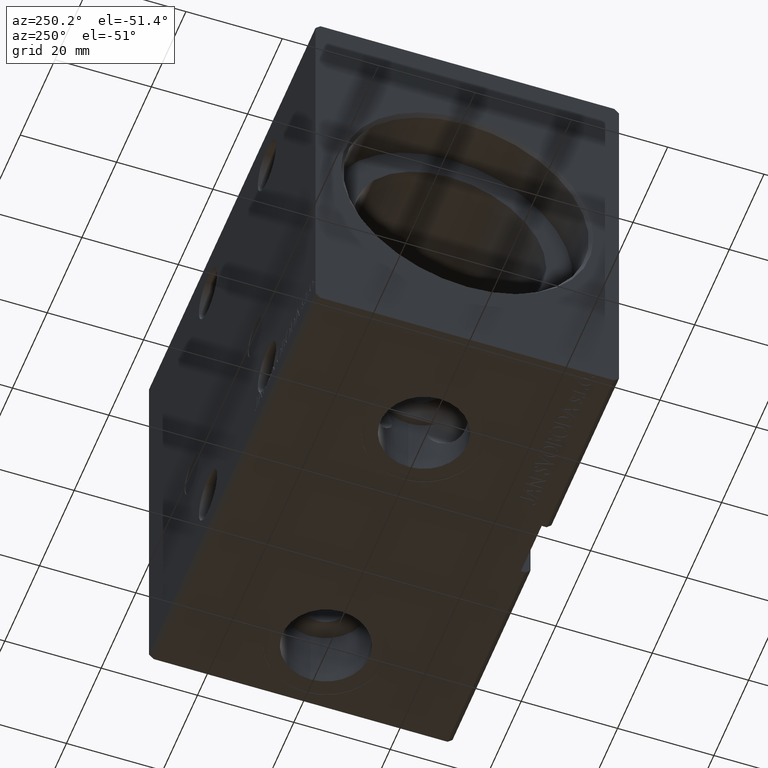
[diagram: clean part render]
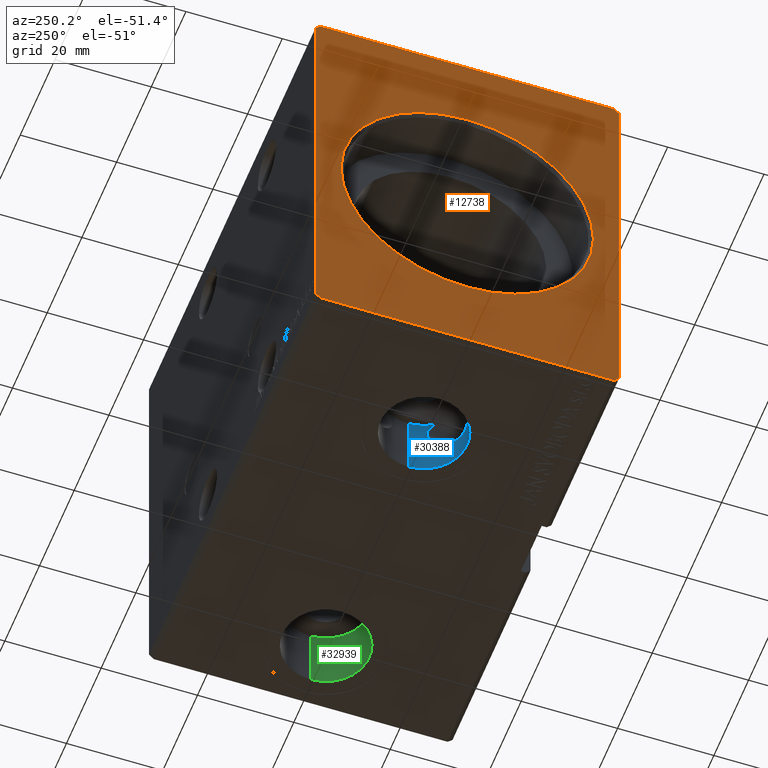
[diagram: same view with three faces highlighted in distinct colors, each labeled with its STEP entity id]
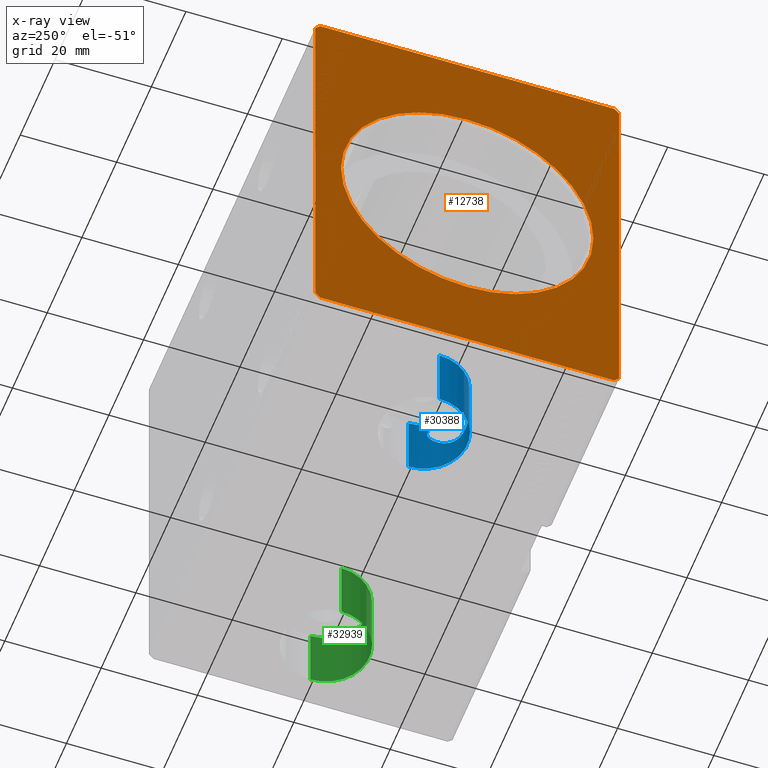
[diagram: x-ray of the same camera — body ghosted, the three highlighted faces saturated]
A machine part, auxiliary view with three faces highlighted in distinct colors.
The next image is the same camera in x-ray (body ghosted, the three faces saturated) — at least one of them is partly hidden behind the body in this view.
Their STEP definitions:

[orange] entity #12738 — the highlighted planar face has unit normal (1, 0, 0).
#185 = ORIENTED_EDGE ( 'NONE', *, *, #25959, .T. ) ;
#1245 = ORIENTED_EDGE ( 'NONE', *, *, #7974, .F. ) ;
#1975 = VECTOR ( 'NONE', #34392, 1000.000000000000000 ) ;
#3384 = EDGE_LOOP ( 'NONE', ( #32281, #11614, #8584, #1245, #32557, #32505, #19109, #31046 ) ) ;
#3762 = DIRECTION ( 'NONE',  ( 0.000000000000000000, 0.7071067811865462405, 0.7071067811865489050 ) ) ;
#3880 = DIRECTION ( 'NONE',  ( 0.000000000000000000, -0.7071067811865474617, 0.7071067811865474617 ) ) ;
#4078 = LINE ( 'NONE', #6796, #40055 ) ;
#5003 = CIRCLE ( 'NONE', #33392, 26.19999999999998863 ) ;
#5585 = CARTESIAN_POINT ( 'NONE',  ( 0.000000000000000000, -31.50000000000000000, -41.50000000000000711 ) ) ;
#5790 = CARTESIAN_POINT ( 'NONE',  ( 0.000000000000000000, -31.50000000000000000, 41.49999999999999289 ) ) ;
#5886 = VECTOR ( 'NONE', #31996, 1000.000000000000000 ) ;
#6162 = CARTESIAN_POINT ( 'NONE',  ( 0.000000000000000000, -31.50000000000000000, 41.49999999999999289 ) ) ;
#6796 = CARTESIAN_POINT ( 'NONE',  ( 0.000000000000000000, -30.50000000000000355, 42.49999999999999289 ) ) ;
#6845 = DIRECTION ( 'NONE',  ( 0.000000000000000000, 1.000000000000000000, 0.000000000000000000 ) ) ;
#6986 = LINE ( 'NONE', #15889, #27634 ) ;
#7293 = LINE ( 'NONE', #19482, #22002 ) ;
#7974 = EDGE_CURVE ( 'NONE', #24980, #20966, #37696, .T. ) ;
#8133 = VERTEX_POINT ( 'NONE', #34987 ) ;
#8448 = AXIS2_PLACEMENT_3D ( 'NONE', #24257, #30653, #12043 ) ;
#8584 = ORIENTED_EDGE ( 'NONE', *, *, #27670, .F. ) ;
#9144 = LINE ( 'NONE', #21764, #1975 ) ;
#9348 = PLANE ( 'NONE',  #8448 ) ;
#9891 = VERTEX_POINT ( 'NONE', #5585 ) ;
#9935 = DIRECTION ( 'NONE',  ( 1.000000000000000000, 0.000000000000000000, 0.000000000000000000 ) ) ;
#10293 = DIRECTION ( 'NONE',  ( 0.000000000000000000, -0.7071067811865462405, -0.7071067811865489050 ) ) ;
#10343 = DIRECTION ( 'NONE',  ( 0.000000000000000000, 0.000000000000000000, -1.000000000000000000 ) ) ;
#11614 = ORIENTED_EDGE ( 'NONE', *, *, #15639, .F. ) ;
#12043 = DIRECTION ( 'NONE',  ( 0.000000000000000000, 0.000000000000000000, -1.000000000000000000 ) ) ;
#12385 = DIRECTION ( 'NONE',  ( 0.000000000000000000, 0.7071067811865451302, -0.7071067811865500152 ) ) ;
#12738 = ADVANCED_FACE ( 'NONE', ( #21771, #37508 ), #9348, .F. ) ;
#13418 = CARTESIAN_POINT ( 'NONE',  ( 0.000000000000000000, 0.000000000000000000, 0.000000000000000000 ) ) ;
#13631 = ORIENTED_EDGE ( 'NONE', *, *, #37085, .T. ) ;
#14580 = CARTESIAN_POINT ( 'NONE',  ( 0.000000000000000000, 30.50000000000001421, 42.49999999999999289 ) ) ;
#15639 = EDGE_CURVE ( 'NONE', #20866, #34434, #6986, .T. ) ;
#15705 = LINE ( 'NONE', #25818, #32984 ) ;
#15889 = CARTESIAN_POINT ( 'NONE',  ( 0.000000000000000000, 31.50000000000001421, -41.50000000000000711 ) ) ;
#17195 = CARTESIAN_POINT ( 'NONE',  ( 0.000000000000000000, -30.50000000000000355, 42.49999999999999289 ) ) ;
#18100 = CARTESIAN_POINT ( 'NONE',  ( 0.000000000000000000, 30.50000000000001776, -42.50000000000000711 ) ) ;
#19109 = ORIENTED_EDGE ( 'NONE', *, *, #38104, .F. ) ;
#19482 = CARTESIAN_POINT ( 'NONE',  ( 0.000000000000000000, 30.50000000000001776, -42.50000000000000711 ) ) ;
#19557 = VECTOR ( 'NONE', #12385, 1000.000000000000114 ) ;
#19654 = CARTESIAN_POINT ( 'NONE',  ( 0.000000000000000000, 0.000000000000000000, 0.000000000000000000 ) ) ;
#19970 = EDGE_CURVE ( 'NONE', #23440, #25775, #9144, .T. ) ;
#20584 = AXIS2_PLACEMENT_3D ( 'NONE', #13418, #38274, #35770 ) ;
#20866 = VERTEX_POINT ( 'NONE', #29075 ) ;
#20966 = VERTEX_POINT ( 'NONE', #18100 ) ;
#21552 = EDGE_CURVE ( 'NONE', #23089, #9891, #37010, .T. ) ;
#21764 = CARTESIAN_POINT ( 'NONE',  ( 0.000000000000000000, 30.50000000000001421, 42.49999999999999289 ) ) ;
#21771 = FACE_BOUND ( 'NONE', #28454, .T. ) ;
#22002 = VECTOR ( 'NONE', #3762, 999.9999999999998863 ) ;
#22718 = CARTESIAN_POINT ( 'NONE',  ( 0.000000000000000000, 31.50000000000001421, 41.49999999999999289 ) ) ;
#23089 = VERTEX_POINT ( 'NONE', #5790 ) ;
#23157 = EDGE_CURVE ( 'NONE', #34434, #23440, #15705, .T. ) ;
#23440 = VERTEX_POINT ( 'NONE', #14580 ) ;
#24257 = CARTESIAN_POINT ( 'NONE',  ( 0.000000000000000000, 0.000000000000000000, 0.000000000000000000 ) ) ;
#24700 = VERTEX_POINT ( 'NONE', #29427 ) ;
#24980 = VERTEX_POINT ( 'NONE', #30870 ) ;
#25775 = VERTEX_POINT ( 'NONE', #17195 ) ;
#25818 = CARTESIAN_POINT ( 'NONE',  ( 0.000000000000000000, 31.50000000000001421, 41.49999999999999289 ) ) ;
#25959 = EDGE_CURVE ( 'NONE', #24700, #8133, #38448, .T. ) ;
#27634 = VECTOR ( 'NONE', #37262, 1000.000000000000000 ) ;
#27670 = EDGE_CURVE ( 'NONE', #20966, #20866, #7293, .T. ) ;
#28092 = CARTESIAN_POINT ( 'NONE',  ( 0.000000000000000000, -31.50000000000000000, -41.50000000000000711 ) ) ;
#28454 = EDGE_LOOP ( 'NONE', ( #13631, #185 ) ) ;
#29075 = CARTESIAN_POINT ( 'NONE',  ( 0.000000000000000000, 31.50000000000001421, -41.50000000000000711 ) ) ;
#29427 = CARTESIAN_POINT ( 'NONE',  ( 0.000000000000000000, 3.208574613766063722E-15, -26.19999999999998863 ) ) ;
#30653 = DIRECTION ( 'NONE',  ( 1.000000000000000000, 0.000000000000000000, 0.000000000000000000 ) ) ;
#30770 = VECTOR ( 'NONE', #6845, 1000.000000000000000 ) ;
#30870 = CARTESIAN_POINT ( 'NONE',  ( 0.000000000000000000, -30.50000000000000711, -42.50000000000000711 ) ) ;
#31046 = ORIENTED_EDGE ( 'NONE', *, *, #19970, .F. ) ;
#31872 = CARTESIAN_POINT ( 'NONE',  ( 0.000000000000000000, -30.50000000000000711, -42.50000000000000711 ) ) ;
#31996 = DIRECTION ( 'NONE',  ( 0.000000000000000000, 0.000000000000000000, -1.000000000000000000 ) ) ;
#32281 = ORIENTED_EDGE ( 'NONE', *, *, #23157, .F. ) ;
#32505 = ORIENTED_EDGE ( 'NONE', *, *, #21552, .F. ) ;
#32557 = ORIENTED_EDGE ( 'NONE', *, *, #38061, .F. ) ;
#32984 = VECTOR ( 'NONE', #3880, 1000.000000000000114 ) ;
#33392 = AXIS2_PLACEMENT_3D ( 'NONE', #19654, #9935, #10343 ) ;
#34392 = DIRECTION ( 'NONE',  ( 0.000000000000000000, -1.000000000000000000, 0.000000000000000000 ) ) ;
#34434 = VERTEX_POINT ( 'NONE', #22718 ) ;
#34987 = CARTESIAN_POINT ( 'NONE',  ( 0.000000000000000000, 0.000000000000000000, 26.19999999999998863 ) ) ;
#35770 = DIRECTION ( 'NONE',  ( 0.000000000000000000, 0.000000000000000000, -1.000000000000000000 ) ) ;
#37010 = LINE ( 'NONE', #6162, #5886 ) ;
#37035 = LINE ( 'NONE', #28092, #19557 ) ;
#37085 = EDGE_CURVE ( 'NONE', #8133, #24700, #5003, .T. ) ;
#37262 = DIRECTION ( 'NONE',  ( 0.000000000000000000, 0.000000000000000000, 1.000000000000000000 ) ) ;
#37508 = FACE_OUTER_BOUND ( 'NONE', #3384, .T. ) ;
#37696 = LINE ( 'NONE', #31872, #30770 ) ;
#38061 = EDGE_CURVE ( 'NONE', #9891, #24980, #37035, .T. ) ;
#38104 = EDGE_CURVE ( 'NONE', #25775, #23089, #4078, .T. ) ;
#38274 = DIRECTION ( 'NONE',  ( 1.000000000000000000, 0.000000000000000000, 0.000000000000000000 ) ) ;
#38448 = CIRCLE ( 'NONE', #20584, 26.19999999999998863 ) ;
#40055 = VECTOR ( 'NONE', #10293, 999.9999999999998863 ) ;

[blue] entity #30388 — the highlighted cylindrical surface (partial cylindrical patch) has radius 9 mm, axis along (-0, -0, -1).
#455 = EDGE_CURVE ( 'NONE', #38071, #18462, #12771, .T. ) ;
#1009 = CARTESIAN_POINT ( 'NONE',  ( 25.59139474755289712, -8.982805896134886225, -36.17063999887223247 ) ) ;
#1218 = CARTESIAN_POINT ( 'NONE',  ( 22.74804822313883790, -8.713708641842128344, -31.68149027390553840 ) ) ;
#1961 = CARTESIAN_POINT ( 'NONE',  ( 33.22560366286070632, -3.653595990558375473, -32.06699883898451731 ) ) ;
#2163 = CARTESIAN_POINT ( 'NONE',  ( 30.30560158851340091, -7.274200838205569397, -36.22207015579552802 ) ) ;
#2616 = LINE ( 'NONE', #9033, #6999 ) ;
#3036 = AXIS2_PLACEMENT_3D ( 'NONE', #38295, #22347, #37691 ) ;
#3497 = CARTESIAN_POINT ( 'NONE',  ( 23.95726430294239861, -8.945460866260507515, -34.88153592072618636 ) ) ;
#4656 = CARTESIAN_POINT ( 'NONE',  ( 33.08962436763945902, -3.947224592150487599, -32.80873910227624890 ) ) ;
#4854 = CARTESIAN_POINT ( 'NONE',  ( 32.69212753593811982, -4.675829051438523898, -33.86519840367557777 ) ) ;
#4929 = CARTESIAN_POINT ( 'NONE',  ( 22.86212622378299031, -8.742604917044038970, -32.60391993553432854 ) ) ;
#5028 = DIRECTION ( 'NONE',  ( -0.000000000000000000, -0.000000000000000000, -1.000000000000000000 ) ) ;
#5276 = CARTESIAN_POINT ( 'NONE',  ( 28.98517754201990115, -8.074007388929286932, -36.66256190678087279 ) ) ;
#5541 = VERTEX_POINT ( 'NONE', #15835 ) ;
#5832 = ORIENTED_EDGE ( 'NONE', *, *, #455, .F. ) ;
#6549 = FACE_OUTER_BOUND ( 'NONE', #37113, .T. ) ;
#6999 = VECTOR ( 'NONE', #37182, 1000.000000000000000 ) ;
#7077 = EDGE_CURVE ( 'NONE', #18462, #5541, #40044, .T. ) ;
#7090 = B_SPLINE_CURVE_WITH_KNOTS ( 'NONE', 3,
 ( #40053, #36112, #36521, #23681, #17692, #7770, #20779, #30300, #36319, #20377, #1961, #33004, #4656, #7970, #14585, #4854, #27194, #11680, #39841, #11466, #24086, #18090, #2163, #36731, #20991, #33622, #5276, #30500, #14784, #24302 ),
 .UNSPECIFIED., .F., .F.,
 ( 4, 2, 2, 2, 2, 2, 2, 2, 2, 2, 2, 2, 2, 2, 4 ),
 ( 0.000000000000000000, 0.0008071024603539738796, 0.001614204920707947759, 0.002421307381061921313, 0.003228409841415895518, 0.004035512301769869289, 0.004842614762123842627, 0.005649717222477816832, 0.006456819682831791037, 0.008071024603539740314, 0.009685229524247690458, 0.01049233198460166119, 0.01129943444495563019, 0.01210653690530960266, 0.01291363936566357340 ),
 .UNSPECIFIED. ) ;
#7433 = CARTESIAN_POINT ( 'NONE',  ( 22.76106731078869672, -8.717111773706365696, -31.91217486323479235 ) ) ;
#7770 = CARTESIAN_POINT ( 'NONE',  ( 33.10246986897183774, -3.920705777433834527, -30.24183443631941870 ) ) ;
#7970 = CARTESIAN_POINT ( 'NONE',  ( 32.95326830917984040, -4.215225687027825963, -33.25562162745016792 ) ) ;
#9033 = CARTESIAN_POINT ( 'NONE',  ( 34.00000000000000000, -1.563571752218930007E-15, -28.80000000000000782 ) ) ;
#9240 = CYLINDRICAL_SURFACE ( 'NONE', #16814, 9.000000000000001776 ) ;
#9304 = ORIENTED_EDGE ( 'NONE', *, *, #33716, .F. ) ;
#9525 = AXIS2_PLACEMENT_3D ( 'NONE', #35151, #24245, #21909 ) ;
#10124 = CARTESIAN_POINT ( 'NONE',  ( 27.11034434197095777, -8.752165220027299242, -36.67901082102268617 ) ) ;
#10288 = CARTESIAN_POINT ( 'NONE',  ( 23.49750069405891040, -8.873696852814312308, -28.80000000000000782 ) ) ;
#11466 = CARTESIAN_POINT ( 'NONE',  ( 31.40682111085803996, -6.336490055253520381, -35.51646266891867754 ) ) ;
#11680 = CARTESIAN_POINT ( 'NONE',  ( 32.26259123308183518, -5.330200586698289555, -34.59367876446104617 ) ) ;
#12339 = DIRECTION ( 'NONE',  ( -1.000000000000000000, 0.000000000000000000, 0.000000000000000000 ) ) ;
#12771 = B_SPLINE_CURVE_WITH_KNOTS ( 'NONE', 3,
 ( #29131, #38480, #22948, #10124, #32464, #22732, #35578, #16732, #1009, #26247, #38892, #34965, #19234, #3497, #25640, #28726, #14655, #4929, #20037, #7433, #1218, #26452, #17353, #32871, #29553, #13840, #14036, #36594 ),
 .UNSPECIFIED., .F., .F.,
 ( 4, 2, 2, 2, 2, 2, 2, 2, 2, 2, 2, 2, 2, 4 ),
 ( 0.01291363936566357340, 0.01361175604324377404, 0.01430987272082397468, 0.01500798939840417533, 0.01570610607598437597, 0.01640422275356457488, 0.01710233943114477725, 0.01849857278630519242, 0.01989480614146561105, 0.02059292281904582383, 0.02129103949662604356, 0.02268727285178648648, 0.02338538952936671314, 0.02408350620694693980 ),
 .UNSPECIFIED. ) ;
#13470 = CIRCLE ( 'NONE', #9525, 9.000000000000001776 ) ;
#13840 = CARTESIAN_POINT ( 'NONE',  ( 23.27059274189552340, -8.832775809210357210, -29.20894511765796153 ) ) ;
#14036 = CARTESIAN_POINT ( 'NONE',  ( 23.37738945160329607, -8.853359550174989323, -29.00029658733043547 ) ) ;
#14585 = CARTESIAN_POINT ( 'NONE',  ( 32.87240420797046880, -4.365484547417698202, -33.46720653120355138 ) ) ;
#14655 = CARTESIAN_POINT ( 'NONE',  ( 23.03834888611822151, -8.784446765826636749, -33.27765657024913537 ) ) ;
#14784 = CARTESIAN_POINT ( 'NONE',  ( 28.25226097365503364, -8.396093651688483206, -36.75000000000001421 ) ) ;
#15835 = CARTESIAN_POINT ( 'NONE',  ( 16.00000000000000000, -2.665753871451547918E-15, -28.80000000000000782 ) ) ;
#16413 = VERTEX_POINT ( 'NONE', #25903 ) ;
#16732 = CARTESIAN_POINT ( 'NONE',  ( 25.80280332647018682, -8.966720906279062930, -36.27372584527573451 ) ) ;
#16814 = AXIS2_PLACEMENT_3D ( 'NONE', #40709, #22461, #12339 ) ;
#16886 = VERTEX_POINT ( 'NONE', #20500 ) ;
#17353 = CARTESIAN_POINT ( 'NONE',  ( 22.82185515507104867, -8.733399877350683127, -30.51888342165216628 ) ) ;
#17692 = CARTESIAN_POINT ( 'NONE',  ( 32.96902614846746360, -4.185280637644433810, -29.78916438976628456 ) ) ;
#18090 = CARTESIAN_POINT ( 'NONE',  ( 30.50533783128135568, -7.123974380155897457, -36.11892088993678129 ) ) ;
#18462 = VERTEX_POINT ( 'NONE', #10288 ) ;
#19234 = CARTESIAN_POINT ( 'NONE',  ( 24.44994982000762818, -8.984686236058527342, -35.37474424890113056 ) ) ;
#20037 = CARTESIAN_POINT ( 'NONE',  ( 22.81783157993402256, -8.731494617107420808, -32.37260203187950935 ) ) ;
#20377 = CARTESIAN_POINT ( 'NONE',  ( 33.24838697486192984, -3.600573145518977114, -31.80232776514764481 ) ) ;
#20500 = CARTESIAN_POINT ( 'NONE',  ( 32.50249930594109316, -4.971167283883480614, -28.80000000000000782 ) ) ;
#20779 = CARTESIAN_POINT ( 'NONE',  ( 33.15626062017206976, -3.805746510833896146, -30.47908235364516116 ) ) ;
#20991 = CARTESIAN_POINT ( 'NONE',  ( 29.67436925629790423, -7.695307840376844233, -36.48138453588469332 ) ) ;
#21410 = ORIENTED_EDGE ( 'NONE', *, *, #33190, .T. ) ;
#21826 = ORIENTED_EDGE ( 'NONE', *, *, #33273, .F. ) ;
#21909 = DIRECTION ( 'NONE',  ( -1.000000000000000000, 0.000000000000000000, 0.000000000000000000 ) ) ;
#22347 = DIRECTION ( 'NONE',  ( 0.000000000000000000, 0.000000000000000000, -1.000000000000000000 ) ) ;
#22461 = DIRECTION ( 'NONE',  ( -0.000000000000000000, -0.000000000000000000, -1.000000000000000000 ) ) ;
#22599 = CARTESIAN_POINT ( 'NONE',  ( 34.00000000000000000, -1.563571752218929810E-15, -42.40000000000000568 ) ) ;
#22732 = CARTESIAN_POINT ( 'NONE',  ( 26.44890769679656728, -8.885417148570533996, -36.52077516330830065 ) ) ;
#22948 = CARTESIAN_POINT ( 'NONE',  ( 27.55898194793435252, -8.631660365798145662, -36.73632918673811787 ) ) ;
#23681 = CARTESIAN_POINT ( 'NONE',  ( 32.88997847107852124, -4.333604162310006558, -29.57671200896456654 ) ) ;
#24086 = CARTESIAN_POINT ( 'NONE',  ( 31.07321886333549443, -6.659957587000611134, -35.77930101341501512 ) ) ;
#24245 = DIRECTION ( 'NONE',  ( 0.000000000000000000, 0.000000000000000000, -1.000000000000000000 ) ) ;
#24302 = CARTESIAN_POINT ( 'NONE',  ( 28.00000000000009592, -8.485281374238560659, -36.75000000000000000 ) ) ;
#25562 = EDGE_CURVE ( 'NONE', #5541, #16413, #40221, .T. ) ;
#25640 = CARTESIAN_POINT ( 'NONE',  ( 23.67579958464197887, -8.905157241044252103, -34.51349665352065443 ) ) ;
#25903 = CARTESIAN_POINT ( 'NONE',  ( 16.00000000000000000, -2.665753871451547918E-15, -42.40000000000000568 ) ) ;
#26019 = DIRECTION ( 'NONE',  ( -1.000000000000000000, 0.000000000000000000, 0.000000000000000000 ) ) ;
#26020 = AXIS2_PLACEMENT_3D ( 'NONE', #32239, #35554, #26019 ) ;
#26247 = CARTESIAN_POINT ( 'NONE',  ( 25.18903526593379993, -9.000267506207924484, -35.94012775998812259 ) ) ;
#26452 = CARTESIAN_POINT ( 'NONE',  ( 22.75460823258611143, -8.715402240385634158, -30.98803325270438691 ) ) ;
#27194 = CARTESIAN_POINT ( 'NONE',  ( 32.59211834536794328, -4.837231280210447792, -34.05332277271028119 ) ) ;
#28726 = CARTESIAN_POINT ( 'NONE',  ( 23.21242691909567668, -8.823826534343449879, -33.70431742450200119 ) ) ;
#29131 = CARTESIAN_POINT ( 'NONE',  ( 28.00000000000009592, -8.485281374238560659, -36.75000000000000000 ) ) ;
#29553 = CARTESIAN_POINT ( 'NONE',  ( 23.08708755828483206, -8.794858950005247422, -29.63465369784726278 ) ) ;
#30300 = CARTESIAN_POINT ( 'NONE',  ( 33.23160277185719025, -3.639918902289857705, -30.99046211007217977 ) ) ;
#30388 = ADVANCED_FACE ( 'NONE', ( #6549 ), #9240, .F. ) ;
#30500 = CARTESIAN_POINT ( 'NONE',  ( 28.49971745761768815, -8.295975715655792726, -36.73191195388432106 ) ) ;
#30853 = VERTEX_POINT ( 'NONE', #32742 ) ;
#31159 = VECTOR ( 'NONE', #5028, 1000.000000000000000 ) ;
#31992 = CIRCLE ( 'NONE', #26020, 9.000000000000001776 ) ;
#32239 = CARTESIAN_POINT ( 'NONE',  ( 25.00000000000000000, -2.665753871451547918E-15, -28.80000000000000782 ) ) ;
#32464 = CARTESIAN_POINT ( 'NONE',  ( 26.88824261936819227, -8.802528683756118966, -36.63595814820964591 ) ) ;
#32742 = CARTESIAN_POINT ( 'NONE',  ( 34.00000000000000000, -1.563571752218929810E-15, -28.80000000000000782 ) ) ;
#32871 = CARTESIAN_POINT ( 'NONE',  ( 23.00995675461132706, -8.777464040215880559, -29.85218725184136090 ) ) ;
#33004 = CARTESIAN_POINT ( 'NONE',  ( 33.14534123172962410, -3.829195150338681852, -32.57419036198258055 ) ) ;
#33190 = EDGE_CURVE ( 'NONE', #38891, #16413, #13470, .T. ) ;
#33273 = EDGE_CURVE ( 'NONE', #30853, #16886, #31992, .T. ) ;
#33622 = CARTESIAN_POINT ( 'NONE',  ( 29.22269784940499093, -7.952126355574261396, -36.61103847274182499 ) ) ;
#33716 = EDGE_CURVE ( 'NONE', #16886, #38071, #7090, .T. ) ;
#34965 = CARTESIAN_POINT ( 'NONE',  ( 24.62713621548751775, -8.994166550248049674, -35.52991657403234882 ) ) ;
#35151 = CARTESIAN_POINT ( 'NONE',  ( 25.00000000000000000, -2.665753871451547918E-15, -42.40000000000000568 ) ) ;
#35554 = DIRECTION ( 'NONE',  ( 0.000000000000000000, 0.000000000000000000, -1.000000000000000000 ) ) ;
#35578 = CARTESIAN_POINT ( 'NONE',  ( 26.23167147769406427, -8.917934870984902673, -36.44865091769698751 ) ) ;
#36112 = CARTESIAN_POINT ( 'NONE',  ( 32.61242544197731519, -4.805266457735416274, -28.98331198192884628 ) ) ;
#36319 = CARTESIAN_POINT ( 'NONE',  ( 33.25144789116190225, -3.593552888541374113, -31.25656014728340182 ) ) ;
#36521 = CARTESIAN_POINT ( 'NONE',  ( 32.71187504199514962, -4.643152877768041975, -29.17423996665695185 ) ) ;
#36594 = CARTESIAN_POINT ( 'NONE',  ( 23.49750069405891040, -8.873696852814312308, -28.80000000000000782 ) ) ;
#36689 = CARTESIAN_POINT ( 'NONE',  ( 16.00000000000000000, -2.665753871451547918E-15, -28.80000000000000782 ) ) ;
#36731 = CARTESIAN_POINT ( 'NONE',  ( 29.89057914193943688, -7.559473639547501733, -36.40300476741294489 ) ) ;
#37113 = EDGE_LOOP ( 'NONE', ( #21826, #38811, #21410, #37479, #39510, #5832, #9304 ) ) ;
#37182 = DIRECTION ( 'NONE',  ( -0.000000000000000000, -0.000000000000000000, -1.000000000000000000 ) ) ;
#37479 = ORIENTED_EDGE ( 'NONE', *, *, #25562, .F. ) ;
#37523 = EDGE_CURVE ( 'NONE', #30853, #38891, #2616, .T. ) ;
#37691 = DIRECTION ( 'NONE',  ( -1.000000000000000000, 0.000000000000000000, 0.000000000000000000 ) ) ;
#38048 = CARTESIAN_POINT ( 'NONE',  ( 28.00000000000009592, -8.485281374238560659, -36.75000000000000000 ) ) ;
#38071 = VERTEX_POINT ( 'NONE', #38048 ) ;
#38295 = CARTESIAN_POINT ( 'NONE',  ( 25.00000000000000000, -2.665753871451547918E-15, -28.80000000000000782 ) ) ;
#38480 = CARTESIAN_POINT ( 'NONE',  ( 27.78180268124343755, -8.562425776103323116, -36.75000000000000711 ) ) ;
#38811 = ORIENTED_EDGE ( 'NONE', *, *, #37523, .T. ) ;
#38891 = VERTEX_POINT ( 'NONE', #22599 ) ;
#38892 = CARTESIAN_POINT ( 'NONE',  ( 24.99615880545296775, -9.001891166895228835, -35.81200368511887433 ) ) ;
#39510 = ORIENTED_EDGE ( 'NONE', *, *, #7077, .F. ) ;
#39841 = CARTESIAN_POINT ( 'NONE',  ( 32.00127014616709431, -5.672801715841330861, -34.92465175887961948 ) ) ;
#40044 = CIRCLE ( 'NONE', #3036, 9.000000000000001776 ) ;
#40053 = CARTESIAN_POINT ( 'NONE',  ( 32.50249930594109316, -4.971167283883480614, -28.80000000000000782 ) ) ;
#40221 = LINE ( 'NONE', #36689, #31159 ) ;
#40709 = CARTESIAN_POINT ( 'NONE',  ( 25.00000000000000000, -2.665753871451547918E-15, -28.80000000000000782 ) ) ;

[green] entity #32939 — the highlighted cylindrical surface (partial cylindrical patch) has radius 9 mm, axis along (-0, -0, -1).
#1901 = EDGE_CURVE ( 'NONE', #26655, #28353, #21825, .T. ) ;
#3606 = CIRCLE ( 'NONE', #6937, 8.999999999999994671 ) ;
#4395 = CARTESIAN_POINT ( 'NONE',  ( 72.50000000000001421, -9.911387943591445357E-15, -42.40000000000000568 ) ) ;
#4794 = ORIENTED_EDGE ( 'NONE', *, *, #30153, .T. ) ;
#4984 = CARTESIAN_POINT ( 'NONE',  ( 90.50000000000000000, -8.809205824358827446E-15, -28.80000000000000782 ) ) ;
#6517 = CARTESIAN_POINT ( 'NONE',  ( 90.50000000000000000, -8.809205824358827446E-15, -28.80000000000000782 ) ) ;
#6783 = CARTESIAN_POINT ( 'NONE',  ( 90.50000000000000000, -8.809205824358827446E-15, -42.40000000000000568 ) ) ;
#6937 = AXIS2_PLACEMENT_3D ( 'NONE', #7909, #39780, #21138 ) ;
#7909 = CARTESIAN_POINT ( 'NONE',  ( 81.50000000000000000, -9.911387943591445357E-15, -42.40000000000000568 ) ) ;
#8343 = LINE ( 'NONE', #36692, #11756 ) ;
#9386 = DIRECTION ( 'NONE',  ( -1.000000000000000000, 0.000000000000000000, 0.000000000000000000 ) ) ;
#11756 = VECTOR ( 'NONE', #40012, 1000.000000000000000 ) ;
#11995 = VERTEX_POINT ( 'NONE', #34793 ) ;
#13482 = EDGE_CURVE ( 'NONE', #11995, #23538, #8343, .T. ) ;
#13584 = VECTOR ( 'NONE', #16021, 1000.000000000000000 ) ;
#15201 = CYLINDRICAL_SURFACE ( 'NONE', #20728, 8.999999999999994671 ) ;
#16021 = DIRECTION ( 'NONE',  ( -0.000000000000000000, -0.000000000000000000, -1.000000000000000000 ) ) ;
#16130 = DIRECTION ( 'NONE',  ( 0.000000000000000000, 0.000000000000000000, -1.000000000000000000 ) ) ;
#17209 = EDGE_CURVE ( 'NONE', #26655, #11995, #30323, .T. ) ;
#18698 = DIRECTION ( 'NONE',  ( -0.000000000000000000, -0.000000000000000000, -1.000000000000000000 ) ) ;
#20728 = AXIS2_PLACEMENT_3D ( 'NONE', #40457, #18698, #9386 ) ;
#21138 = DIRECTION ( 'NONE',  ( -1.000000000000000000, 0.000000000000000000, 0.000000000000000000 ) ) ;
#21825 = LINE ( 'NONE', #6517, #13584 ) ;
#22055 = ORIENTED_EDGE ( 'NONE', *, *, #17209, .F. ) ;
#22131 = DIRECTION ( 'NONE',  ( -1.000000000000000000, 0.000000000000000000, 0.000000000000000000 ) ) ;
#23538 = VERTEX_POINT ( 'NONE', #4395 ) ;
#25155 = ORIENTED_EDGE ( 'NONE', *, *, #1901, .T. ) ;
#25641 = CARTESIAN_POINT ( 'NONE',  ( 81.50000000000000000, -9.911387943591445357E-15, -28.80000000000000782 ) ) ;
#26655 = VERTEX_POINT ( 'NONE', #4984 ) ;
#28353 = VERTEX_POINT ( 'NONE', #6783 ) ;
#30153 = EDGE_CURVE ( 'NONE', #28353, #23538, #3606, .T. ) ;
#30323 = CIRCLE ( 'NONE', #32987, 8.999999999999994671 ) ;
#32241 = EDGE_LOOP ( 'NONE', ( #22055, #25155, #4794, #36858 ) ) ;
#32939 = ADVANCED_FACE ( 'NONE', ( #34436 ), #15201, .F. ) ;
#32987 = AXIS2_PLACEMENT_3D ( 'NONE', #25641, #16130, #22131 ) ;
#34436 = FACE_OUTER_BOUND ( 'NONE', #32241, .T. ) ;
#34793 = CARTESIAN_POINT ( 'NONE',  ( 72.50000000000001421, -9.911387943591445357E-15, -28.80000000000000782 ) ) ;
#36692 = CARTESIAN_POINT ( 'NONE',  ( 72.50000000000001421, -9.911387943591445357E-15, -28.80000000000000782 ) ) ;
#36858 = ORIENTED_EDGE ( 'NONE', *, *, #13482, .F. ) ;
#39780 = DIRECTION ( 'NONE',  ( 0.000000000000000000, 0.000000000000000000, -1.000000000000000000 ) ) ;
#40012 = DIRECTION ( 'NONE',  ( -0.000000000000000000, -0.000000000000000000, -1.000000000000000000 ) ) ;
#40457 = CARTESIAN_POINT ( 'NONE',  ( 81.50000000000000000, -9.911387943591445357E-15, -28.80000000000000782 ) ) ;